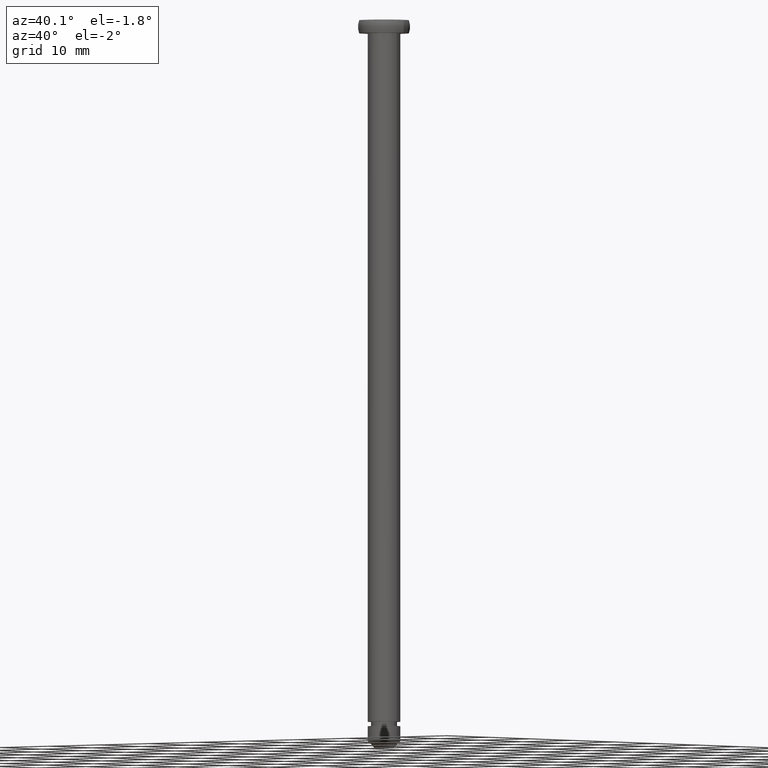
[diagram: clean part render]
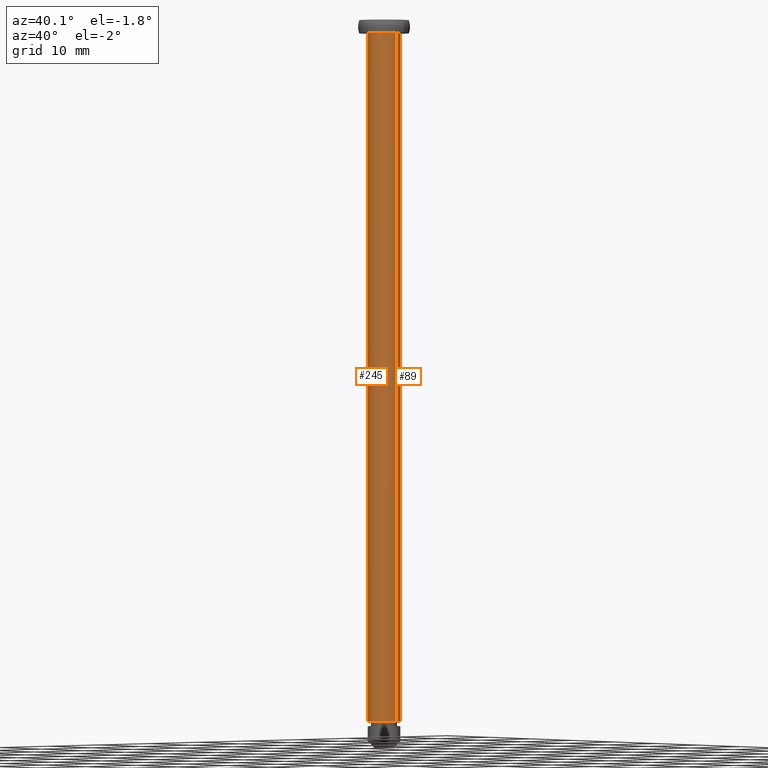
[diagram: same view with one multi-face feature highlighted, each face labeled with its STEP entity id]
A machine part, auxiliary view. The highlighted faces form ONE feature: a constant-radius fillet chain: 2 tangent blend faces with common blend radius 2.5 mm. The faces share edges in the B-rep.
Their STEP definitions:
[1] entity #245 (Cylinder):
#26 = VERTEX_POINT ( 'NONE', #448 ) ;
#30 = AXIS2_PLACEMENT_3D ( 'NONE', #294, #134, #189 ) ;
#34 = DIRECTION ( 'NONE',  ( 0.0000000000000000000, 0.0000000000000000000, -1.000000000000000000 ) ) ;
#39 = DIRECTION ( 'NONE',  ( -1.000000000000000000, 0.0000000000000000000, 0.0000000000000000000 ) ) ;
#45 = CARTESIAN_POINT ( 'NONE',  ( 2.500000000000000000, 3.061616997868383100E-016, 2.155049632374841000E-007 ) ) ;
#51 = ORIENTED_EDGE ( 'NONE', *, *, #366, .F. ) ;
#55 = AXIS2_PLACEMENT_3D ( 'NONE', #332, #34, #400 ) ;
#66 = CIRCLE ( 'NONE', #55, 2.500000000000000000 ) ;
#70 = CARTESIAN_POINT ( 'NONE',  ( 2.500000000000000000, 3.061616997868383100E-016, -2.000000018043410300 ) ) ;
#74 = VERTEX_POINT ( 'NONE', #329 ) ;
#78 = EDGE_CURVE ( 'NONE', #74, #271, #236, .T. ) ;
#81 = CIRCLE ( 'NONE', #30, 2.500000000000000000 ) ;
#86 = VECTOR ( 'NONE', #311, 1000.000000000000000 ) ;
#94 = EDGE_CURVE ( 'NONE', #415, #26, #456, .T. ) ;
#134 = DIRECTION ( 'NONE',  ( 0.0000000000000000000, 0.0000000000000000000, -1.000000000000000000 ) ) ;
#174 = CARTESIAN_POINT ( 'NONE',  ( -2.500000000000000000, 0.0000000000000000000, -108.0000000360869900 ) ) ;
#180 = ORIENTED_EDGE ( 'NONE', *, *, #94, .F. ) ;
#187 = ORIENTED_EDGE ( 'NONE', *, *, #78, .T. ) ;
#189 = DIRECTION ( 'NONE',  ( -1.000000000000000000, 0.0000000000000000000, 0.0000000000000000000 ) ) ;
#202 = DIRECTION ( 'NONE',  ( 0.0000000000000000000, 0.0000000000000000000, -1.000000000000000000 ) ) ;
#233 = DIRECTION ( 'NONE',  ( 0.0000000000000000000, 0.0000000000000000000, -1.000000000000000000 ) ) ;
#236 = LINE ( 'NONE', #242, #284 ) ;
#242 = CARTESIAN_POINT ( 'NONE',  ( -2.500000000000000000, 0.0000000000000000000, 2.155049632374841000E-007 ) ) ;
#245 = ADVANCED_FACE ( 'NONE', ( #419 ), #377, .T. ) ;
#271 = VERTEX_POINT ( 'NONE', #174 ) ;
#284 = VECTOR ( 'NONE', #202, 1000.000000000000000 ) ;
#294 = CARTESIAN_POINT ( 'NONE',  ( 0.0000000000000000000, 0.0000000000000000000, -2.000000018043410300 ) ) ;
#311 = DIRECTION ( 'NONE',  ( 0.0000000000000000000, 0.0000000000000000000, -1.000000000000000000 ) ) ;
#315 = EDGE_LOOP ( 'NONE', ( #180, #455, #187, #51 ) ) ;
#329 = CARTESIAN_POINT ( 'NONE',  ( -2.500000000000000000, 0.0000000000000000000, -2.000000018043410300 ) ) ;
#332 = CARTESIAN_POINT ( 'NONE',  ( 0.0000000000000000000, 0.0000000000000000000, -108.0000000360869900 ) ) ;
#349 = CARTESIAN_POINT ( 'NONE',  ( 0.0000000000000000000, 0.0000000000000000000, 2.155049632374841000E-007 ) ) ;
#352 = AXIS2_PLACEMENT_3D ( 'NONE', #349, #233, #39 ) ;
#366 = EDGE_CURVE ( 'NONE', #26, #271, #66, .T. ) ;
#377 = CYLINDRICAL_SURFACE ( 'NONE', #352, 2.500000000000000000 ) ;
#394 = EDGE_CURVE ( 'NONE', #415, #74, #81, .T. ) ;
#400 = DIRECTION ( 'NONE',  ( -1.000000000000000000, 0.0000000000000000000, 0.0000000000000000000 ) ) ;
#415 = VERTEX_POINT ( 'NONE', #70 ) ;
#419 = FACE_OUTER_BOUND ( 'NONE', #315, .T. ) ;
#448 = CARTESIAN_POINT ( 'NONE',  ( 2.500000000000000000, 3.061616997868383100E-016, -108.0000000360869900 ) ) ;
#455 = ORIENTED_EDGE ( 'NONE', *, *, #394, .T. ) ;
#456 = LINE ( 'NONE', #45, #86 ) ;
[2] entity #89 (Cylinder):
#22 = DIRECTION ( 'NONE',  ( -1.000000000000000000, 0.0000000000000000000, 0.0000000000000000000 ) ) ;
#24 = ORIENTED_EDGE ( 'NONE', *, *, #28, .F. ) ;
#26 = VERTEX_POINT ( 'NONE', #448 ) ;
#28 = EDGE_CURVE ( 'NONE', #271, #26, #216, .T. ) ;
#36 = AXIS2_PLACEMENT_3D ( 'NONE', #48, #350, #22 ) ;
#45 = CARTESIAN_POINT ( 'NONE',  ( 2.500000000000000000, 3.061616997868383100E-016, 2.155049632374841000E-007 ) ) ;
#48 = CARTESIAN_POINT ( 'NONE',  ( 0.0000000000000000000, 0.0000000000000000000, 2.155049632374841000E-007 ) ) ;
#70 = CARTESIAN_POINT ( 'NONE',  ( 2.500000000000000000, 3.061616997868383100E-016, -2.000000018043410300 ) ) ;
#74 = VERTEX_POINT ( 'NONE', #329 ) ;
#76 = ORIENTED_EDGE ( 'NONE', *, *, #102, .T. ) ;
#78 = EDGE_CURVE ( 'NONE', #74, #271, #236, .T. ) ;
#86 = VECTOR ( 'NONE', #311, 1000.000000000000000 ) ;
#89 = ADVANCED_FACE ( 'NONE', ( #347 ), #167, .T. ) ;
#94 = EDGE_CURVE ( 'NONE', #415, #26, #456, .T. ) ;
#102 = EDGE_CURVE ( 'NONE', #74, #415, #406, .T. ) ;
#167 = CYLINDRICAL_SURFACE ( 'NONE', #36, 2.500000000000000000 ) ;
#169 = AXIS2_PLACEMENT_3D ( 'NONE', #422, #368, #199 ) ;
#171 = ORIENTED_EDGE ( 'NONE', *, *, #78, .F. ) ;
#174 = CARTESIAN_POINT ( 'NONE',  ( -2.500000000000000000, 0.0000000000000000000, -108.0000000360869900 ) ) ;
#199 = DIRECTION ( 'NONE',  ( -1.000000000000000000, 0.0000000000000000000, 0.0000000000000000000 ) ) ;
#202 = DIRECTION ( 'NONE',  ( 0.0000000000000000000, 0.0000000000000000000, -1.000000000000000000 ) ) ;
#216 = CIRCLE ( 'NONE', #169, 2.500000000000000000 ) ;
#236 = LINE ( 'NONE', #242, #284 ) ;
#242 = CARTESIAN_POINT ( 'NONE',  ( -2.500000000000000000, 0.0000000000000000000, 2.155049632374841000E-007 ) ) ;
#271 = VERTEX_POINT ( 'NONE', #174 ) ;
#284 = VECTOR ( 'NONE', #202, 1000.000000000000000 ) ;
#311 = DIRECTION ( 'NONE',  ( 0.0000000000000000000, 0.0000000000000000000, -1.000000000000000000 ) ) ;
#329 = CARTESIAN_POINT ( 'NONE',  ( -2.500000000000000000, 0.0000000000000000000, -2.000000018043410300 ) ) ;
#347 = FACE_OUTER_BOUND ( 'NONE', #442, .T. ) ;
#350 = DIRECTION ( 'NONE',  ( 0.0000000000000000000, 0.0000000000000000000, -1.000000000000000000 ) ) ;
#362 = ORIENTED_EDGE ( 'NONE', *, *, #94, .T. ) ;
#368 = DIRECTION ( 'NONE',  ( 0.0000000000000000000, 0.0000000000000000000, -1.000000000000000000 ) ) ;
#381 = DIRECTION ( 'NONE',  ( 0.0000000000000000000, 0.0000000000000000000, -1.000000000000000000 ) ) ;
#405 = DIRECTION ( 'NONE',  ( -1.000000000000000000, 0.0000000000000000000, 0.0000000000000000000 ) ) ;
#406 = CIRCLE ( 'NONE', #410, 2.500000000000000000 ) ;
#410 = AXIS2_PLACEMENT_3D ( 'NONE', #445, #381, #405 ) ;
#415 = VERTEX_POINT ( 'NONE', #70 ) ;
#422 = CARTESIAN_POINT ( 'NONE',  ( 0.0000000000000000000, 0.0000000000000000000, -108.0000000360869900 ) ) ;
#442 = EDGE_LOOP ( 'NONE', ( #76, #362, #24, #171 ) ) ;
#445 = CARTESIAN_POINT ( 'NONE',  ( 0.0000000000000000000, 0.0000000000000000000, -2.000000018043410300 ) ) ;
#448 = CARTESIAN_POINT ( 'NONE',  ( 2.500000000000000000, 3.061616997868383100E-016, -108.0000000360869900 ) ) ;
#456 = LINE ( 'NONE', #45, #86 ) ;